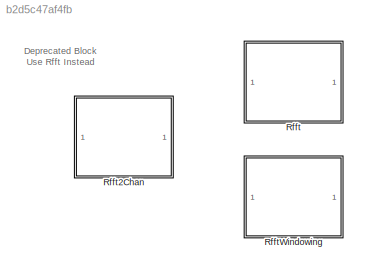
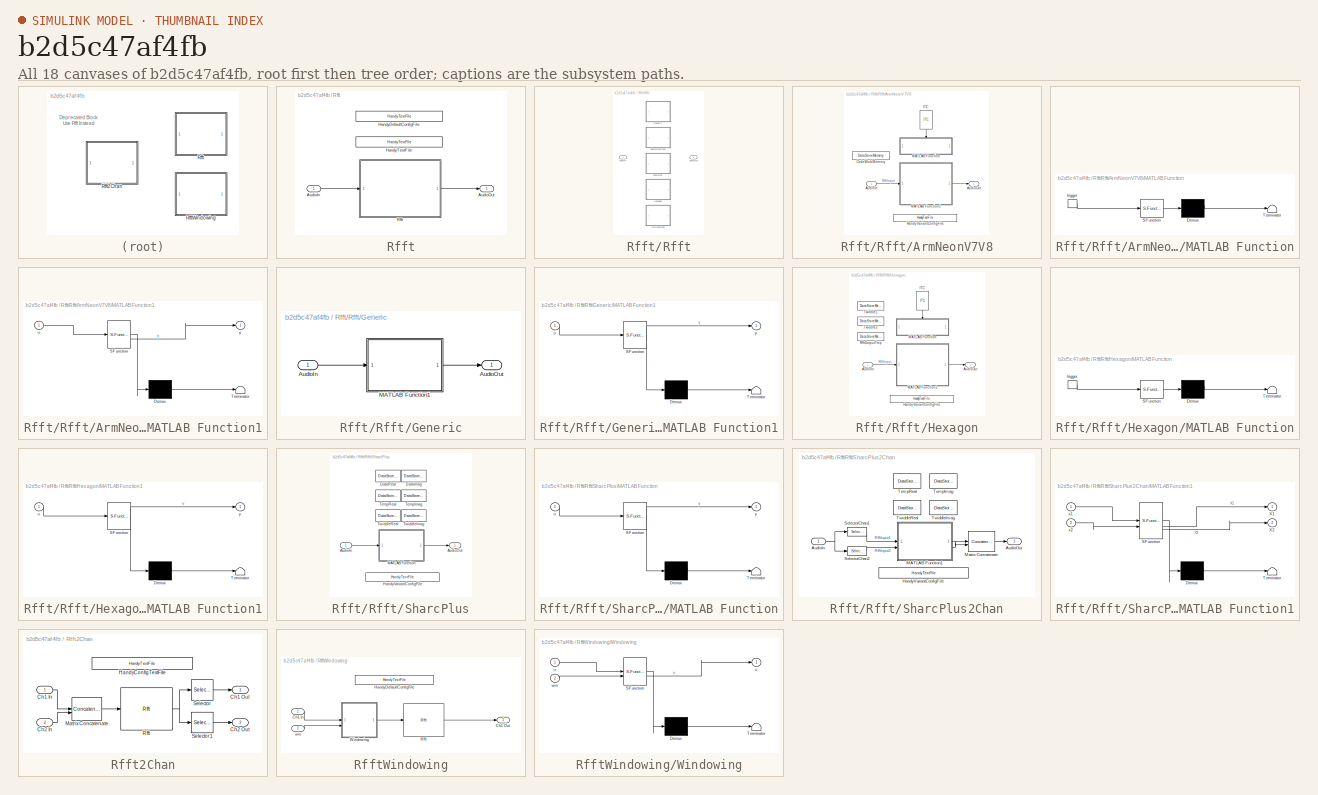
[diagram: thumbnail index - all 18 canvases of the model, root first then tree order]
MODEL slx_b2d5c47af4fb
KIND library
CONFIG AbsTol = auto
CONFIG EnableMultiTasking = off
CONFIG FixedStep = auto
CONFIG MaxStep = auto
CONFIG MinStep = auto
CONFIG RelTol = 1e-3
CONFIG SampleTimeConstraint = Unconstrained
CONFIG SolverName = VariableStepAuto
CONFIG StartTime = 0.0
CONFIG StopTime = 10.0
BLOCK [SubSystem] Rfft
  Description = This block computes the Fourier Transform using an optimized FFT for real 2-channel input.
BLOCK [Inport] Rfft/AudioIn
  SignalType = real
BLOCK [Outport] Rfft/AudioOut
  SignalType = complex
  VectorParamsAs1DForOutWhenUnconnected = off
BLOCK [Reference] Rfft/HandyDefaultConfigFile  REF=HandyTextFile/HandyTextFile
  SourceBlock = HandyTextFile/HandyTextFile
  SourceProductName = Bose Talaria
  SourceType = Talaria Handy Text File
BLOCK [Reference] Rfft/HandyTextFile  REF=HandyTextFile/HandyTextFile
  SourceBlock = HandyTextFile/HandyTextFile
  SourceProductName = Bose Talaria
  SourceType = Talaria Handy Text File
BLOCK [SubSystem] Rfft/Rfft
  Variant = on
  VariantControl = Choice
BLOCK [SubSystem] Rfft/Rfft/ArmNeonV7V8
  VariantControl = Config.Variant == "ArmNeonV7V8"
BLOCK [Inport] Rfft/Rfft/ArmNeonV7V8/AudioIn
BLOCK [Outport] Rfft/Rfft/ArmNeonV7V8/AudioOut
  VectorParamsAs1DForOutWhenUnconnected = off
BLOCK [DataStoreMemory] Rfft/Rfft/ArmNeonV7V8/CodeWorkMemory
  DataStoreName = CodeWorkMemory
  InitialValue = Config.VariantObj.DsmCodeWorkMemoryInitValue
  OutDataTypeStr = uint32
  ShowAdditionalParam = off
  SignalType = real
  WriteAfterWriteMsg = warning
BLOCK [Reference] Rfft/Rfft/ArmNeonV7V8/HandyVariantConfigFile  REF=HandyTextFile/HandyTextFile
  SourceBlock = HandyTextFile/HandyTextFile
  SourceProductName = Bose Talaria
  SourceType = Talaria Handy Text File
BLOCK [Reference] Rfft/Rfft/ArmNeonV7V8/ITC  REF=ITC/ITC
  NameLocation = right
  SourceBlock = ITC/ITC
  SourceProductName = Bose Talaria
  SourceType = Talaria Initialization Trigger Control
BLOCK [SubSystem] Rfft/Rfft/ArmNeonV7V8/MATLAB Function
  ErrorFcn = Stateflow.Translate.translate
  LibrarySourceBlock = simulink/User-Defined\nFunctions/MATLAB Function
  PermitHierarchicalResolution = ExplicitOnly
  SFBlockType = MATLAB Function
  TreatAsAtomicUnit = on
BLOCK [Demux] Rfft/Rfft/ArmNeonV7V8/MATLAB Function/ Demux 
  Outputs = 1
BLOCK [S-Function] Rfft/Rfft/ArmNeonV7V8/MATLAB Function/ SFunction 
  EnableBusSupport = off
  FunctionName = sf_sfun
  Parameters = fftSize
  PortCounts = [1 1]
  SFcnIsStateOwnerBlock = off
  SFunctionDeploymentMode = off
  Tag = Stateflow S-Function 2
BLOCK [Terminator] Rfft/Rfft/ArmNeonV7V8/MATLAB Function/ Terminator 
BLOCK [TriggerPort] Rfft/Rfft/ArmNeonV7V8/MATLAB Function/trigger
  ShowOutputPort = on
  StatesWhenEnabling = held
  TriggerType = function-call
  VariantControl = (inherit)
BLOCK [SubSystem] Rfft/Rfft/ArmNeonV7V8/MATLAB Function1
  ErrorFcn = Stateflow.Translate.translate
  LibrarySourceBlock = simulink/User-Defined\nFunctions/MATLAB Function
  PermitHierarchicalResolution = ExplicitOnly
  SFBlockType = MATLAB Function
  TreatAsAtomicUnit = on
BLOCK [Demux] Rfft/Rfft/ArmNeonV7V8/MATLAB Function1/ Demux 
  Outputs = 1
BLOCK [S-Function] Rfft/Rfft/ArmNeonV7V8/MATLAB Function1/ SFunction 
  EnableBusSupport = off
  FunctionName = sf_sfun
  Parameters = fftSize
  PortCounts = [1 2]
  SFcnIsStateOwnerBlock = off
  SFunctionDeploymentMode = off
  Tag = Stateflow S-Function 3
BLOCK [Terminator] Rfft/Rfft/ArmNeonV7V8/MATLAB Function1/ Terminator 
BLOCK [Inport] Rfft/Rfft/ArmNeonV7V8/MATLAB Function1/u
BLOCK [Outport] Rfft/Rfft/ArmNeonV7V8/MATLAB Function1/y
BLOCK [Inport] Rfft/Rfft/AudioIn
BLOCK [Outport] Rfft/Rfft/AudioOut
BLOCK [SubSystem] Rfft/Rfft/Generic
  VariantControl = (default)
BLOCK [Inport] Rfft/Rfft/Generic/AudioIn
BLOCK [Outport] Rfft/Rfft/Generic/AudioOut
  VectorParamsAs1DForOutWhenUnconnected = off
BLOCK [SubSystem] Rfft/Rfft/Generic/MATLAB Function1
  ErrorFcn = Stateflow.Translate.translate
  PermitHierarchicalResolution = ExplicitOnly
  SFBlockType = MATLAB Function
  TreatAsAtomicUnit = on
BLOCK [Demux] Rfft/Rfft/Generic/MATLAB Function1/ Demux 
  Outputs = 1
BLOCK [S-Function] Rfft/Rfft/Generic/MATLAB Function1/ SFunction 
  EnableBusSupport = off
  FunctionName = sf_sfun
  Parameters = fftSize
  PortCounts = [1 2]
  SFcnIsStateOwnerBlock = off
  SFunctionDeploymentMode = off
  Tag = Stateflow S-Function 8
BLOCK [Terminator] Rfft/Rfft/Generic/MATLAB Function1/ Terminator 
BLOCK [Inport] Rfft/Rfft/Generic/MATLAB Function1/u
BLOCK [Outport] Rfft/Rfft/Generic/MATLAB Function1/y
  VectorParamsAs1DForOutWhenUnconnected = off
BLOCK [SubSystem] Rfft/Rfft/Hexagon
  VariantControl = Config.Variant == "Hexagon"
BLOCK [Inport] Rfft/Rfft/Hexagon/AudioIn
BLOCK [Outport] Rfft/Rfft/Hexagon/AudioOut
  VectorParamsAs1DForOutWhenUnconnected = off
BLOCK [Reference] Rfft/Rfft/Hexagon/HandyVariantConfigFile  REF=HandyTextFile/HandyTextFile
  SourceBlock = HandyTextFile/HandyTextFile
  SourceProductName = Bose Talaria
  SourceType = Talaria Handy Text File
BLOCK [Reference] Rfft/Rfft/Hexagon/ITC  REF=ITC/ITC
  NameLocation = right
  SourceBlock = ITC/ITC
  SourceProductName = Bose Talaria
  SourceType = Talaria Initialization Trigger Control
BLOCK [SubSystem] Rfft/Rfft/Hexagon/MATLAB Function
  ErrorFcn = Stateflow.Translate.translate
  LibrarySourceBlock = simulink/User-Defined\nFunctions/MATLAB Function
  PermitHierarchicalResolution = ExplicitOnly
  SFBlockType = MATLAB Function
  TreatAsAtomicUnit = on
BLOCK [Demux] Rfft/Rfft/Hexagon/MATLAB Function/ Demux 
  Outputs = 1
BLOCK [S-Function] Rfft/Rfft/Hexagon/MATLAB Function/ SFunction 
  EnableBusSupport = off
  FunctionName = sf_sfun
  Parameters = fftSize
  PortCounts = [1 1]
  SFcnIsStateOwnerBlock = off
  SFunctionDeploymentMode = off
  Tag = Stateflow S-Function 10
BLOCK [Terminator] Rfft/Rfft/Hexagon/MATLAB Function/ Terminator 
BLOCK [TriggerPort] Rfft/Rfft/Hexagon/MATLAB Function/trigger
  ShowOutputPort = on
  StatesWhenEnabling = held
  TriggerType = function-call
  VariantControl = (inherit)
BLOCK [SubSystem] Rfft/Rfft/Hexagon/MATLAB Function1
  ErrorFcn = Stateflow.Translate.translate
  LibrarySourceBlock = simulink/User-Defined\nFunctions/MATLAB Function
  PermitHierarchicalResolution = ExplicitOnly
  SFBlockType = MATLAB Function
  TreatAsAtomicUnit = on
BLOCK [Demux] Rfft/Rfft/Hexagon/MATLAB Function1/ Demux 
  Outputs = 1
BLOCK [S-Function] Rfft/Rfft/Hexagon/MATLAB Function1/ SFunction 
  EnableBusSupport = off
  FunctionName = sf_sfun
  Parameters = fftSize
  PortCounts = [1 2]
  SFcnIsStateOwnerBlock = off
  SFunctionDeploymentMode = off
  Tag = Stateflow S-Function 11
BLOCK [Terminator] Rfft/Rfft/Hexagon/MATLAB Function1/ Terminator 
BLOCK [Inport] Rfft/Rfft/Hexagon/MATLAB Function1/u
BLOCK [Outport] Rfft/Rfft/Hexagon/MATLAB Function1/y
BLOCK [DataStoreMemory] Rfft/Rfft/Hexagon/RfftOutputTmp
  DataStoreName = RfftOutputTmp
  InitialValue = Config.VariantObj.DsmRfftOutputTmpInitValue
  OutDataTypeStr = single
  ShowAdditionalParam = off
  SignalType = complex
  WriteAfterWriteMsg = warning
BLOCK [DataStoreMemory] Rfft/Rfft/Hexagon/Twiddle1
  DataStoreName = Twiddle1
  InitialValue = Config.VariantObj.DsmTwiddle1InitValue
  OutDataTypeStr = single
  ShowAdditionalParam = off
  SignalType = complex
  WriteAfterWriteMsg = warning
BLOCK [DataStoreMemory] Rfft/Rfft/Hexagon/Twiddle2
  DataStoreName = Twiddle2
  InitialValue = Config.VariantObj.DsmTwiddle2InitValue
  OutDataTypeStr = single
  ShowAdditionalParam = off
  SignalType = complex
  WriteAfterWriteMsg = warning
BLOCK [SubSystem] Rfft/Rfft/SharcPlus
  VariantControl = Config.Variant.StartsWith("SharcPlus") && (~Config.Variant.StartsWith("SharcPlus2Chan"))
BLOCK [Inport] Rfft/Rfft/SharcPlus/AudioIn
BLOCK [Outport] Rfft/Rfft/SharcPlus/AudioOut
  VectorParamsAs1DForOutWhenUnconnected = off
BLOCK [DataStoreMemory] Rfft/Rfft/SharcPlus/DataImag
  DataStoreName = DataImag
  InitialValue = Config.VariantObj.DsmDataImagInitValue
  OutDataTypeStr = single
  ReadBeforeWriteMsg = warning
  ShowAdditionalParam = off
  SignalType = real
  WriteAfterReadMsg = warning
  WriteAfterWriteMsg = warning
BLOCK [DataStoreMemory] Rfft/Rfft/SharcPlus/DataReal
  DataStoreName = DataReal
  InitialValue = Config.VariantObj.DsmDataRealInitValue
  OutDataTypeStr = single
  ReadBeforeWriteMsg = warning
  ShowAdditionalParam = off
  SignalType = real
  WriteAfterReadMsg = warning
  WriteAfterWriteMsg = warning
BLOCK [Reference] Rfft/Rfft/SharcPlus/HandyVariantConfigFile  REF=HandyTextFile/HandyTextFile
  SourceBlock = HandyTextFile/HandyTextFile
  SourceProductName = Bose Talaria
  SourceType = Talaria Handy Text File
BLOCK [SubSystem] Rfft/Rfft/SharcPlus/MATLAB Function
  ErrorFcn = Stateflow.Translate.translate
  PermitHierarchicalResolution = ExplicitOnly
  SFBlockType = MATLAB Function
  TreatAsAtomicUnit = on
BLOCK [Demux] Rfft/Rfft/SharcPlus/MATLAB Function/ Demux 
  Outputs = 1
BLOCK [S-Function] Rfft/Rfft/SharcPlus/MATLAB Function/ SFunction 
  EnableBusSupport = off
  FunctionName = sf_sfun
  Parameters = fftSize
  PortCounts = [1 2]
  SFcnIsStateOwnerBlock = off
  SFunctionDeploymentMode = off
  Tag = Stateflow S-Function 12
BLOCK [Terminator] Rfft/Rfft/SharcPlus/MATLAB Function/ Terminator 
BLOCK [Inport] Rfft/Rfft/SharcPlus/MATLAB Function/u
BLOCK [Outport] Rfft/Rfft/SharcPlus/MATLAB Function/y
  VectorParamsAs1DForOutWhenUnconnected = off
BLOCK [DataStoreMemory] Rfft/Rfft/SharcPlus/TempImag
  DataStoreName = TempImag
  InitialValue = Config.VariantObj.DsmTempImagInitValue
  OutDataTypeStr = single
  ReadBeforeWriteMsg = warning
  ShowAdditionalParam = off
  SignalType = real
  WriteAfterReadMsg = warning
  WriteAfterWriteMsg = warning
BLOCK [DataStoreMemory] Rfft/Rfft/SharcPlus/TempReal
  DataStoreName = TempReal
  InitialValue = Config.VariantObj.DsmTempRealInitValue
  OutDataTypeStr = single
  ReadBeforeWriteMsg = warning
  ShowAdditionalParam = off
  SignalType = real
  WriteAfterReadMsg = warning
  WriteAfterWriteMsg = warning
BLOCK [DataStoreMemory] Rfft/Rfft/SharcPlus/TwiddleImag
  DataStoreName = TwiddleImag
  InitialValue = Config.VariantObj.DsmTwiddleImagInitValue
  OutDataTypeStr = uint32
  ReadBeforeWriteMsg = warning
  ShowAdditionalParam = off
  SignalType = real
  WriteAfterReadMsg = warning
  WriteAfterWriteMsg = warning
BLOCK [DataStoreMemory] Rfft/Rfft/SharcPlus/TwiddleReal
  DataStoreName = TwiddleReal
  InitialValue = Config.VariantObj.DsmTwiddleRealInitValue
  OutDataTypeStr = uint32
  ReadBeforeWriteMsg = warning
  ShowAdditionalParam = off
  SignalType = real
  WriteAfterReadMsg = warning
  WriteAfterWriteMsg = warning
BLOCK [SubSystem] Rfft/Rfft/SharcPlus2Chan
  VariantControl = Config.Variant.StartsWith("SharcPlus2Chan")
BLOCK [Inport] Rfft/Rfft/SharcPlus2Chan/AudioIn
BLOCK [Outport] Rfft/Rfft/SharcPlus2Chan/AudioOut
  VectorParamsAs1DForOutWhenUnconnected = off
BLOCK [Reference] Rfft/Rfft/SharcPlus2Chan/HandyVariantConfigFile  REF=HandyTextFile/HandyTextFile
  SourceBlock = HandyTextFile/HandyTextFile
  SourceProductName = Bose Talaria
  SourceType = Talaria Handy Text File
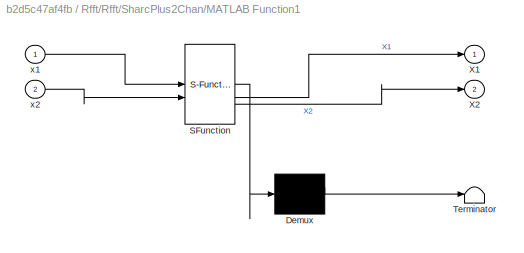
BLOCK [SubSystem] Rfft/Rfft/SharcPlus2Chan/MATLAB Function1
  ErrorFcn = Stateflow.Translate.translate
  PermitHierarchicalResolution = ExplicitOnly
  SFBlockType = MATLAB Function
  TreatAsAtomicUnit = on
BLOCK [Demux] Rfft/Rfft/SharcPlus2Chan/MATLAB Function1/ Demux 
  Outputs = 1
BLOCK [S-Function] Rfft/Rfft/SharcPlus2Chan/MATLAB Function1/ SFunction 
  EnableBusSupport = off
  FunctionName = sf_sfun
  Parameters = fftSize
  PortCounts = [2 3]
  SFcnIsStateOwnerBlock = off
  SFunctionDeploymentMode = off
  Tag = Stateflow S-Function 1
BLOCK [Terminator] Rfft/Rfft/SharcPlus2Chan/MATLAB Function1/ Terminator 
BLOCK [Outport] Rfft/Rfft/SharcPlus2Chan/MATLAB Function1/X1
  VectorParamsAs1DForOutWhenUnconnected = off
BLOCK [Outport] Rfft/Rfft/SharcPlus2Chan/MATLAB Function1/X2
  Port = 2
  VectorParamsAs1DForOutWhenUnconnected = off
BLOCK [Inport] Rfft/Rfft/SharcPlus2Chan/MATLAB Function1/x1
BLOCK [Inport] Rfft/Rfft/SharcPlus2Chan/MATLAB Function1/x2
  Port = 2
BLOCK [Concatenate] Rfft/Rfft/SharcPlus2Chan/Matrix Concatenate
  ConcatenateDimension = 2
  Mode = Multidimensional array
BLOCK [Selector] Rfft/Rfft/SharcPlus2Chan/SelectorChan1
  IndexOptions = Select all,Index vector (dialog)
  Indices = [1 3],1
  InputPortWidth = 3
  NumberOfDimensions = 2
  OutputSizes = 1,1
BLOCK [Selector] Rfft/Rfft/SharcPlus2Chan/SelectorChan2
  IndexOptions = Select all,Index vector (dialog)
  Indices = [1 3],1
  InputPortWidth = 3
  NumberOfDimensions = 2
  OutputSizes = 1,1
BLOCK [DataStoreMemory] Rfft/Rfft/SharcPlus2Chan/TempImag
  DataStoreName = TempImag
  InitialValue = Config.VariantObj.DsmTempImagInitValue
  OutDataTypeStr = single
  ReadBeforeWriteMsg = warning
  ShowAdditionalParam = off
  SignalType = real
  WriteAfterReadMsg = warning
  WriteAfterWriteMsg = warning
BLOCK [DataStoreMemory] Rfft/Rfft/SharcPlus2Chan/TempReal
  DataStoreName = TempReal
  InitialValue = Config.VariantObj.DsmTempRealInitValue
  OutDataTypeStr = single
  ReadBeforeWriteMsg = warning
  ShowAdditionalParam = off
  SignalType = real
  WriteAfterReadMsg = warning
  WriteAfterWriteMsg = warning
BLOCK [DataStoreMemory] Rfft/Rfft/SharcPlus2Chan/TwiddleImag
  DataStoreName = TwiddleImag
  InitialValue = Config.VariantObj.DsmTwiddleImagInitValue
  OutDataTypeStr = uint32
  ReadBeforeWriteMsg = warning
  ShowAdditionalParam = off
  SignalType = real
  WriteAfterReadMsg = warning
  WriteAfterWriteMsg = warning
BLOCK [DataStoreMemory] Rfft/Rfft/SharcPlus2Chan/TwiddleReal
  DataStoreName = TwiddleReal
  InitialValue = Config.VariantObj.DsmTwiddleRealInitValue
  OutDataTypeStr = uint32
  ReadBeforeWriteMsg = warning
  ShowAdditionalParam = off
  SignalType = real
  WriteAfterReadMsg = warning
  WriteAfterWriteMsg = warning
BLOCK [SubSystem] Rfft2Chan
  Description = This block computes the Fourier Transform using an optimized FFT for real 2-channel input.
BLOCK [Inport] Rfft2Chan/Ch1 In
BLOCK [Outport] Rfft2Chan/Ch1 Out
  VectorParamsAs1DForOutWhenUnconnected = off
BLOCK [Inport] Rfft2Chan/Ch2 In
  Port = 2
BLOCK [Outport] Rfft2Chan/Ch2 Out
  Port = 2
  VectorParamsAs1DForOutWhenUnconnected = off
BLOCK [Reference] Rfft2Chan/HandyConfigTextFile  REF=HandyTextFile/HandyTextFile
  SourceBlock = HandyTextFile/HandyTextFile
  SourceProductName = Bose Talaria
  SourceType = Talaria Handy Text File
BLOCK [Concatenate] Rfft2Chan/Matrix Concatenate
  ConcatenateDimension = 2
  Mode = Multidimensional array
BLOCK [Reference] Rfft2Chan/Rfft  REF=$bdroot/Rfft
  Description = This block computes the Fourier Transform using an optimized FFT for real 2-channel input.
  SourceBlock = $bdroot/Rfft
  SourceType = Blocklib Rfft
BLOCK [Selector] Rfft2Chan/Selector
  IndexOptions = Select all,Index vector (dialog)
  Indices = [1 3],1
  InputPortWidth = 3
  NumberOfDimensions = 2
  OutputSizes = 1,1
BLOCK [Selector] Rfft2Chan/Selector1
  IndexOptions = Select all,Index vector (dialog)
  Indices = [1 3],2
  InputPortWidth = 3
  NumberOfDimensions = 2
  OutputSizes = 1,1
BLOCK [SubSystem] RfftWindowing
  Description = This block computes the Fourier Transform using an optimized FFT for real 2-channel input.
BLOCK [Inport] RfftWindowing/Ch1 In
  SignalType = real
BLOCK [Outport] RfftWindowing/Ch1 Out
  SignalType = complex
  VectorParamsAs1DForOutWhenUnconnected = off
BLOCK [Reference] RfftWindowing/HandyDefaultConfigFile  REF=HandyTextFile/HandyTextFile
  SourceBlock = HandyTextFile/HandyTextFile
  SourceProductName = Bose Talaria
  SourceType = Talaria Handy Text File
BLOCK [Reference] RfftWindowing/Rfft  REF=$bdroot/Rfft
  Description = This block computes the Fourier Transform using an optimized FFT for real 2-channel input.
  SourceBlock = $bdroot/Rfft
  SourceType = Blocklib Rfft
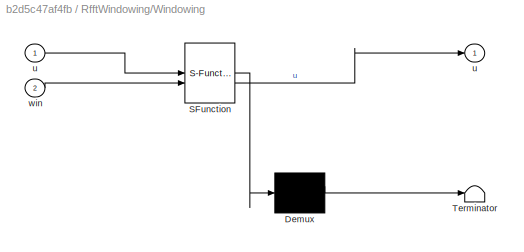
BLOCK [SubSystem] RfftWindowing/Windowing
  ErrorFcn = Stateflow.Translate.translate
  PermitHierarchicalResolution = ExplicitOnly
  SFBlockType = MATLAB Function
  TreatAsAtomicUnit = on
BLOCK [Demux] RfftWindowing/Windowing/ Demux 
  Outputs = 1
BLOCK [S-Function] RfftWindowing/Windowing/ SFunction 
  EnableBusSupport = off
  FunctionName = sf_sfun
  PortCounts = [2 2]
  SFcnIsStateOwnerBlock = off
  SFunctionDeploymentMode = off
  Tag = Stateflow S-Function 9
BLOCK [Terminator] RfftWindowing/Windowing/ Terminator 
BLOCK [Outport] RfftWindowing/Windowing/u
  VectorParamsAs1DForOutWhenUnconnected = off
BLOCK [Inport] RfftWindowing/Windowing/u 
BLOCK [Inport] RfftWindowing/Windowing/win
  Port = 2
BLOCK [Inport] RfftWindowing/win
  Port = 2
ANNOTATION (root): Deprecated Block Use Rfft Instead
CHART Rfft/Rfft/SharcPlus2Chan/MATLAB Function1 states=1 transitions=1
  STATE_LABEL 'eML_blk_kernel()'
  STATE_LABEL "SCRIPT:\nfunction [X1, X2] = Rfft(x1, x2, fftSize)   \n\nglobal TempReal\nglobal TempImag\nglobal TwiddleReal\nglobal TwiddleImag\n\n% Nullcopy copies type, size, and complexity to output\nX1 = coder.nullcopy(complex(single(zeros((fftSize/2) + 1, 1))));\nX2 = coder.nullcopy(complex(single(zeros((fftSize/2) + 1, 1))));\n\n% Set correct data types\nfftSize = uint32(fftSize);\n\n% Simulation\nif(coder.target('MATLAB...<+1107ch>"
CHART Rfft/Rfft/ArmNeonV7V8/MATLAB Function states=1 transitions=1
  STATE_LABEL 'eML_blk_kernel()'
  STATE_LABEL "SCRIPT:\nfunction RfftInit(fftSize)\n% Initializes the Twiddle factors used for RFFT computation\n\nglobal CodeWorkMemory;\n\nif ~(coder.target('MATLAB') || coder.target('Sfun')) \n    y = rfft_armv7v8_init(uint32(fftSize), uint32(CodeWorkMemory));    \n    % NOTE: The CRL mechanism requires an output for the function call,\n    % and appears to be optimized out if that return value isn't used. \n    % This...<+384ch>"
CHART Rfft/Rfft/ArmNeonV7V8/MATLAB Function1 states=1 transitions=1
  STATE_LABEL 'eML_blk_kernel()'
  STATE_LABEL 'SCRIPT:\nfunction y = Rfft(u, fftSize)   \n% Computes the Real FFT of a Multi-Channel Signal. \n% During Code Generation, ArmNeonV7V8 rfft crl function is used.\n% Inputs:\n%     u - purely real signal. \n%         size = [fftSize, numChannels]\n%     fftSize - size of each input channel. Also the size of FFT\n% Outputs:\n%     y - fftSize/2 + 1 unique FFT coefficients of each channel of u.\n%         size ...<+877ch>'
CHART Rfft/Rfft/Generic/MATLAB Function1 states=1 transitions=1
  STATE_LABEL 'eML_blk_kernel()'
  STATE_LABEL 'SCRIPT:\nfunction y = Rfft(u, fftSize)\n\ny = RfftProcessSim(u, fftSize);\n\nend\n\n'
CHART RfftWindowing/Windowing states=1 transitions=1
  STATE_LABEL 'eML_blk_kernel()'
  STATE_LABEL "SCRIPT:\nfunction u = fcn(u, win)\n\n% Get sizes\n[~, numChannels] = size(u);\n\n% Loop since array-vector multiply operation doesn't work here\n% Input/Output have the same variable name for in-place processing\nfor i = 1:numChannels\n    u(:, i) = u(:,i) .* win;\nend\n\nend"
CHART Rfft/Rfft/Hexagon/MATLAB Function states=1 transitions=1
  STATE_LABEL 'eML_blk_kernel()'
  STATE_LABEL 'SCRIPT:\nfunction RfftInit(fftSize)\n% Initializes the Twiddle factors used for RFFT computation\n\nglobal Twiddle1;\nglobal Twiddle2;\n\n% Intialize Twiddle Factors\n[Twiddle1, Twiddle2] = rfft_init(int32(fftSize));\n\nend\n\nfunction [Twiddle1, Twiddle2] = rfft_init(fftSize)\n% Twiddle1: Twiddle factor for N/2-point complex FFT\n% Twiddle2: Twiddle factors for last stage\n% If target == codegen, error out if n...<+156ch>'
CHART Rfft/Rfft/Hexagon/MATLAB Function1 states=1 transitions=1
  STATE_LABEL 'eML_blk_kernel()'
  STATE_LABEL 'SCRIPT:\nfunction y = Rfft(u, fftSize)   \n% Computes the Real FFT of a Multi-Channel Signal. \n% During Code Generation, hexagon rfft crl function is used.\n% Inputs:\n%     u - purely real signal. \n%         size = [fftSize, numChannels]\n%     fftSize - size of each input channel. Also the size of FFT\n% Outputs:\n%     y - fftSize/2 + 1 unique FFT coefficients of each channel of u.\n%         size = [f...<+916ch>'
CHART Rfft/Rfft/SharcPlus/MATLAB Function states=1 transitions=1
  STATE_LABEL 'eML_blk_kernel()'
  STATE_LABEL 'SCRIPT:\nfunction y = Rfft(u, fftSize)   \n\nglobal DataReal\nglobal DataImag\nglobal TempReal\nglobal TempImag\nglobal TwiddleReal\nglobal TwiddleImag\n\n[~, numChannels] = size(u);\nspectrumSize = (fftSize/2) + 1;\n\n% Nullcopy copies type, size, and complexity of input to output\ny = coder.nullcopy(complex(single(zeros(spectrumSize, numChannels))));\n\n% Set correct data types\nfftSize = uint32(fftSize);\nnumCha...<+1053ch>'
CHART  states=0 transitions=0
CHART  states=0 transitions=0
CHART  states=0 transitions=0
CHART  states=0 transitions=0
CHART  states=0 transitions=0
CHART  states=0 transitions=0
CHART  states=0 transitions=0
CHART  states=0 transitions=0
